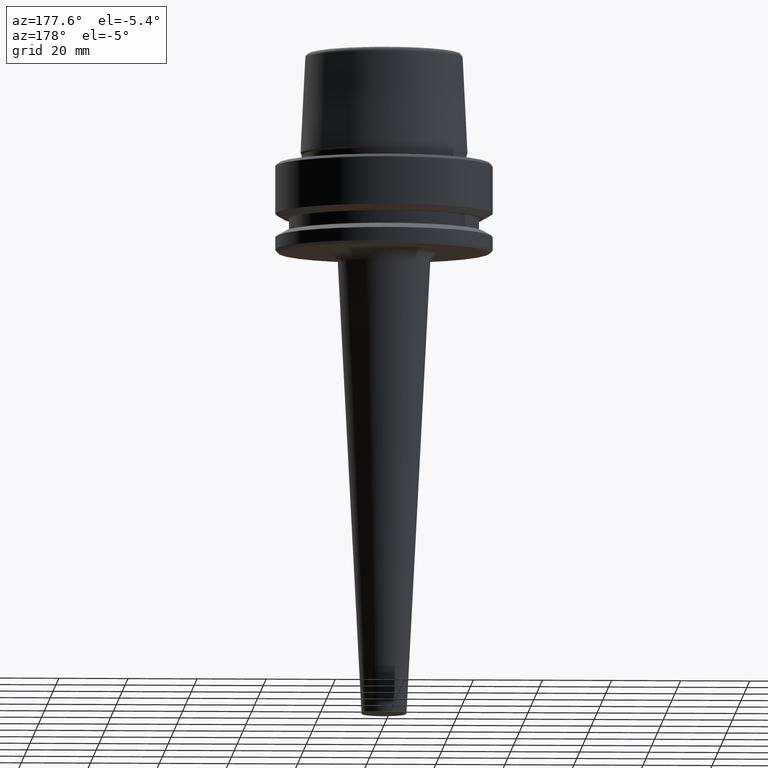
[diagram: clean part render]
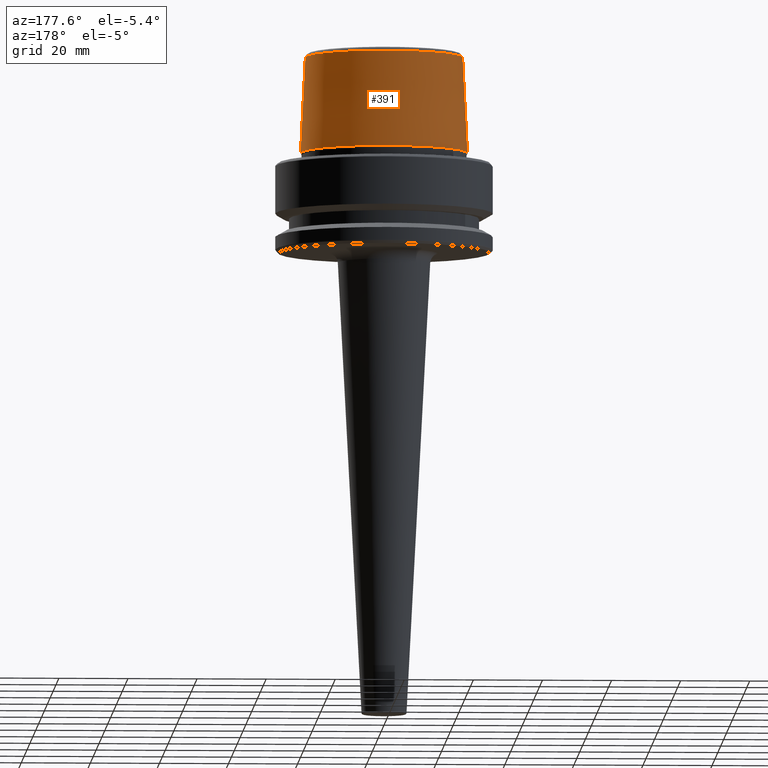
[diagram: same view with one face highlighted and labeled with its STEP entity id]
A machine part, auxiliary view. The second image highlights one B-rep face of the part: STEP entity #391.
In plain terms, the highlighted conical surface has half-angle 2.868 deg.
Its self-contained STEP definition (entity closure, byte-faithful):
#56 = CARTESIAN_POINT ( 'NONE',  ( 0.0000000000000000000, 0.0000000000000000000, 30.76004333261571900 ) ) ;
#69 = LINE ( 'NONE', #1044, #646 ) ;
#82 = ORIENTED_EDGE ( 'NONE', *, *, #500, .T. ) ;
#91 = DIRECTION ( 'NONE',  ( 0.0000000000000000000, 0.0000000000000000000, -1.000000000000000000 ) ) ;
#92 = VERTEX_POINT ( 'NONE', #817 ) ;
#142 = VECTOR ( 'NONE', #648, 1000.000000000000200 ) ;
#196 = CARTESIAN_POINT ( 'NONE',  ( 0.0000000000000000000, 0.0000000000000000000, 3.000000000000002700 ) ) ;
#204 = ORIENTED_EDGE ( 'NONE', *, *, #694, .T. ) ;
#274 = DIRECTION ( 'NONE',  ( -0.0000000000000000000, -0.0000000000000000000, 1.000000000000000000 ) ) ;
#280 = AXIS2_PLACEMENT_3D ( 'NONE', #773, #845, #1204 ) ;
#361 = DIRECTION ( 'NONE',  ( 0.05003611051310812000, 6.127656258166108900E-018, -0.9987474093306675200 ) ) ;
#391 = ADVANCED_FACE ( 'NONE', ( #767 ), #1261, .T. ) ;
#436 = VERTEX_POINT ( 'NONE', #455 ) ;
#440 = CIRCLE ( 'NONE', #280, 24.17032625081241900 ) ;
#455 = CARTESIAN_POINT ( 'NONE',  ( 22.77957961851797100, 2.874852597157249900E-015, 30.76004333261571900 ) ) ;
#495 = AXIS2_PLACEMENT_3D ( 'NONE', #196, #91, #1180 ) ;
#500 = EDGE_CURVE ( 'NONE', #92, #1048, #440, .T. ) ;
#572 = LINE ( 'NONE', #781, #142 ) ;
#646 = VECTOR ( 'NONE', #361, 1000.000000000000200 ) ;
#648 = DIRECTION ( 'NONE',  ( -0.05003611051310812000, 0.0000000000000000000, -0.9987474093306675200 ) ) ;
#680 = CIRCLE ( 'NONE', #1049, 22.77957961851797100 ) ;
#694 = EDGE_CURVE ( 'NONE', #436, #92, #69, .T. ) ;
#750 = DIRECTION ( 'NONE',  ( 1.000000000000000000, 0.0000000000000000000, 0.0000000000000000000 ) ) ;
#767 = FACE_OUTER_BOUND ( 'NONE', #1058, .T. ) ;
#773 = CARTESIAN_POINT ( 'NONE',  ( 0.0000000000000000000, 0.0000000000000000000, 3.000000000000002700 ) ) ;
#781 = CARTESIAN_POINT ( 'NONE',  ( -24.17032625081241900, 0.0000000000000000000, 3.000000000000002700 ) ) ;
#816 = CARTESIAN_POINT ( 'NONE',  ( -24.17032625081241900, 2.960011267740467600E-015, 3.000000000000002700 ) ) ;
#817 = CARTESIAN_POINT ( 'NONE',  ( 24.17032625081241900, 0.0000000000000000000, 3.000000000000002700 ) ) ;
#845 = DIRECTION ( 'NONE',  ( -0.0000000000000000000, -0.0000000000000000000, 1.000000000000000000 ) ) ;
#861 = CARTESIAN_POINT ( 'NONE',  ( -22.77957961851797100, 0.0000000000000000000, 30.76004333261571900 ) ) ;
#1001 = EDGE_CURVE ( 'NONE', #436, #1119, #680, .T. ) ;
#1014 = ORIENTED_EDGE ( 'NONE', *, *, #1001, .F. ) ;
#1044 = CARTESIAN_POINT ( 'NONE',  ( 24.17032625081241900, 2.960011267740467600E-015, 3.000000000000002700 ) ) ;
#1048 = VERTEX_POINT ( 'NONE', #816 ) ;
#1049 = AXIS2_PLACEMENT_3D ( 'NONE', #56, #274, #750 ) ;
#1050 = ORIENTED_EDGE ( 'NONE', *, *, #1108, .F. ) ;
#1058 = EDGE_LOOP ( 'NONE', ( #1014, #204, #82, #1050 ) ) ;
#1108 = EDGE_CURVE ( 'NONE', #1119, #1048, #572, .T. ) ;
#1119 = VERTEX_POINT ( 'NONE', #861 ) ;
#1180 = DIRECTION ( 'NONE',  ( -1.000000000000000000, 0.0000000000000000000, 0.0000000000000000000 ) ) ;
#1204 = DIRECTION ( 'NONE',  ( 1.000000000000000000, 0.0000000000000000000, 0.0000000000000000000 ) ) ;
#1261 = CONICAL_SURFACE ( 'NONE', #495, 24.17032625081241900, 0.05005701257456005000 ) ;